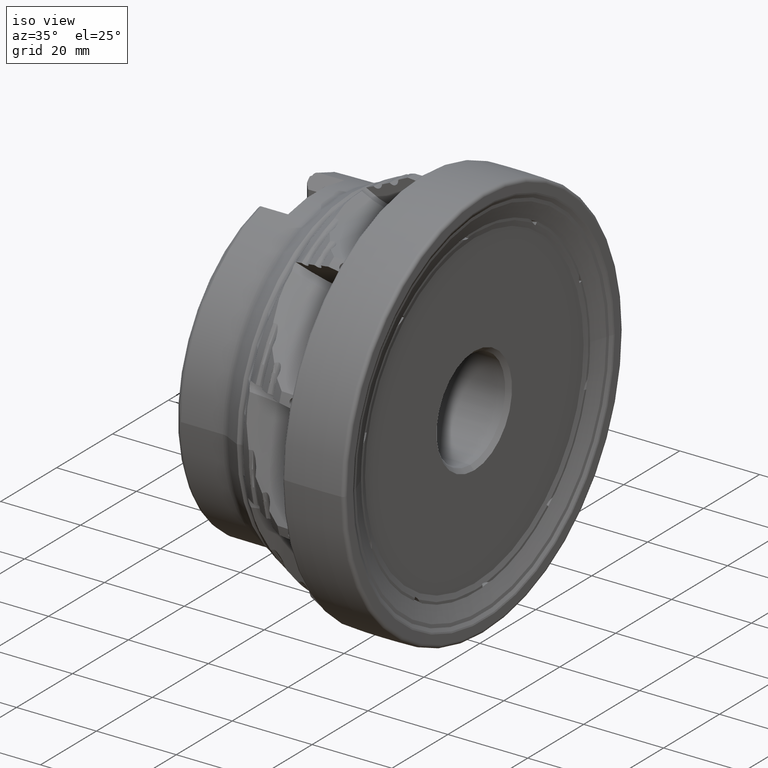
[diagram: clean part render]
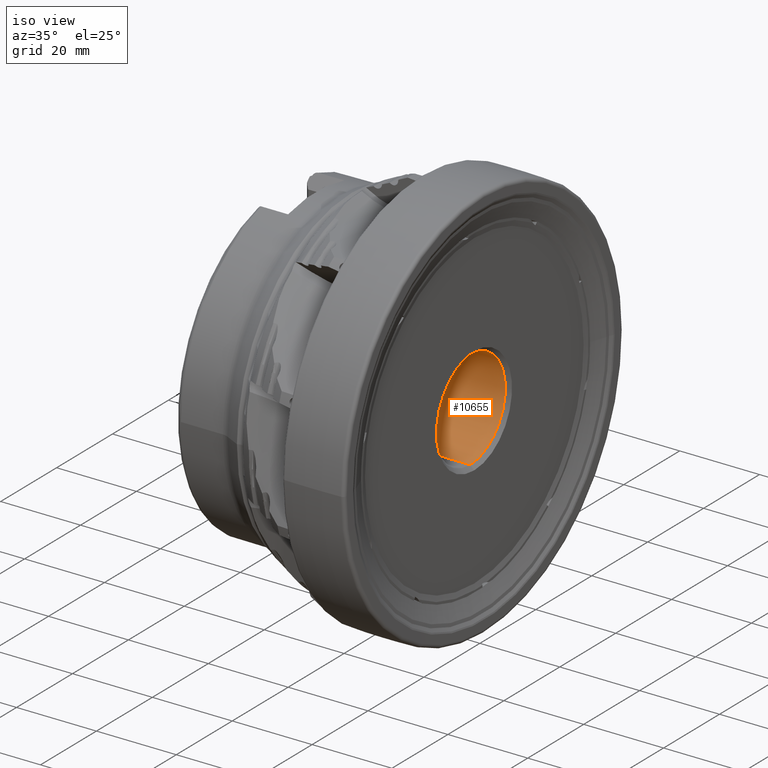
[diagram: same view with one face highlighted and labeled with its STEP entity id]
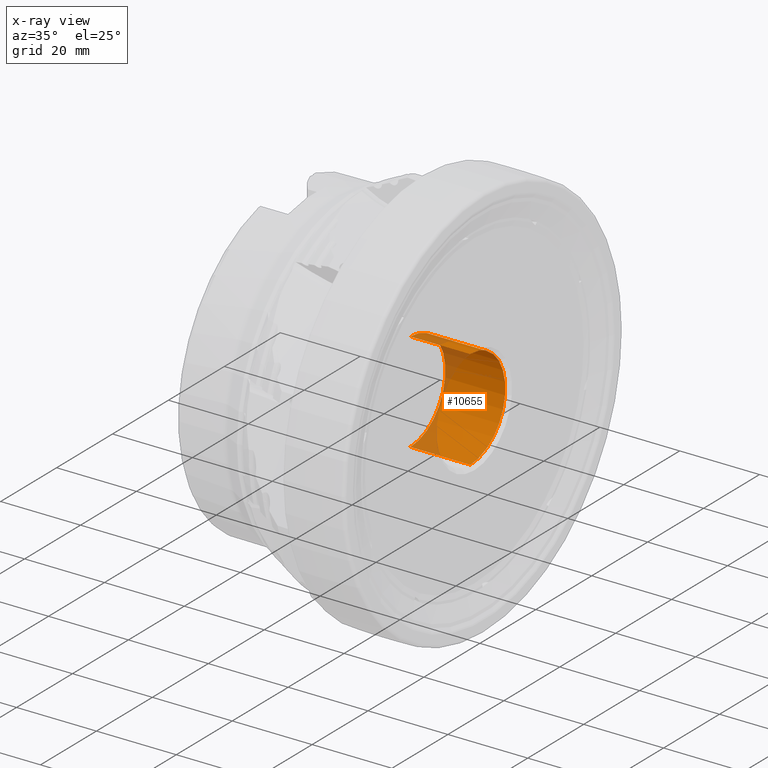
[diagram: x-ray of the same camera — body ghosted, the highlighted face saturated]
A machine part, iso view. The second image highlights one B-rep face of the part: STEP entity #10655.
The next image is the same camera in x-ray: the body ghosted, the highlighted face saturated — about 18% of this face is hidden behind the body in this view.
In plain terms, the highlighted cylindrical surface (partial cylindrical patch) has radius 12.5 mm, axis along (1, -0, -0).
Its self-contained STEP definition (entity closure, byte-faithful):
#76 = VECTOR ( 'NONE', #17584, 1000.000000000000000 ) ;
#98 = CIRCLE ( 'NONE', #7988, 12.49999999999999822 ) ;
#904 = ORIENTED_EDGE ( 'NONE', *, *, #19145, .F. ) ;
#1516 = EDGE_LOOP ( 'NONE', ( #11800, #904, #2616, #5738 ) ) ;
#1655 = CARTESIAN_POINT ( 'NONE',  ( -2.399999999999997691, 0.0000000000000000000, 0.0000000000000000000 ) ) ;
#2142 = DIRECTION ( 'NONE',  ( 1.000000000000000000, -0.0000000000000000000, -0.0000000000000000000 ) ) ;
#2616 = ORIENTED_EDGE ( 'NONE', *, *, #5001, .T. ) ;
#3022 = CARTESIAN_POINT ( 'NONE',  ( -2.399999999999997691, 0.0000000000000000000, -12.50000000000000000 ) ) ;
#3680 = LINE ( 'NONE', #5467, #13242 ) ;
#5001 = EDGE_CURVE ( 'NONE', #8752, #10030, #3680, .T. ) ;
#5286 = CYLINDRICAL_SURFACE ( 'NONE', #14646, 12.50000000000000000 ) ;
#5389 = CARTESIAN_POINT ( 'NONE',  ( 0.0000000000000000000, 0.0000000000000000000, 0.0000000000000000000 ) ) ;
#5467 = CARTESIAN_POINT ( 'NONE',  ( 0.0000000000000000000, 0.0000000000000000000, -12.50000000000000000 ) ) ;
#5738 = ORIENTED_EDGE ( 'NONE', *, *, #6403, .T. ) ;
#6403 = EDGE_CURVE ( 'Kante56', #10030, #19085, #13079, .T. ) ;
#7580 = DIRECTION ( 'NONE',  ( 0.0000000000000000000, 0.0000000000000000000, -1.000000000000000000 ) ) ;
#7634 = CARTESIAN_POINT ( 'NONE',  ( -17.39999999999999858, 1.530808498934191324E-15, 12.49999999999999822 ) ) ;
#7988 = AXIS2_PLACEMENT_3D ( 'NONE', #11524, #13167, #13383 ) ;
#8752 = VERTEX_POINT ( 'NONE', #13127 ) ;
#8768 = DIRECTION ( 'NONE',  ( 0.0000000000000000000, 0.0000000000000000000, -1.000000000000000000 ) ) ;
#10030 = VERTEX_POINT ( 'NONE', #3022 ) ;
#10596 = AXIS2_PLACEMENT_3D ( 'NONE', #1655, #10985, #7580 ) ;
#10655 = ADVANCED_FACE ( 'NONE', ( #17099 ), #5286, .F. ) ;
#10737 = CARTESIAN_POINT ( 'NONE',  ( -2.399999999999997691, 1.530808498934191521E-15, 12.50000000000000000 ) ) ;
#10985 = DIRECTION ( 'NONE',  ( 1.000000000000000000, -0.0000000000000000000, -0.0000000000000000000 ) ) ;
#11524 = CARTESIAN_POINT ( 'NONE',  ( -17.39999999999999858, 0.0000000000000000000, 0.0000000000000000000 ) ) ;
#11800 = ORIENTED_EDGE ( 'NONE', *, *, #19705, .F. ) ;
#12154 = DIRECTION ( 'NONE',  ( 1.000000000000000000, -0.0000000000000000000, -0.0000000000000000000 ) ) ;
#13079 = CIRCLE ( 'NONE', #10596, 12.50000000000000000 ) ;
#13127 = CARTESIAN_POINT ( 'NONE',  ( -17.39999999999999858, 0.0000000000000000000, -12.49999999999999822 ) ) ;
#13167 = DIRECTION ( 'NONE',  ( 1.000000000000000000, -0.0000000000000000000, -0.0000000000000000000 ) ) ;
#13242 = VECTOR ( 'NONE', #2142, 1000.000000000000000 ) ;
#13383 = DIRECTION ( 'NONE',  ( 0.0000000000000000000, 0.0000000000000000000, -1.000000000000000000 ) ) ;
#14646 = AXIS2_PLACEMENT_3D ( 'NONE', #5389, #12154, #8768 ) ;
#17099 = FACE_OUTER_BOUND ( 'NONE', #1516, .T. ) ;
#17584 = DIRECTION ( 'NONE',  ( 1.000000000000000000, -0.0000000000000000000, -0.0000000000000000000 ) ) ;
#19068 = LINE ( 'NONE', #21195, #76 ) ;
#19085 = VERTEX_POINT ( 'NONE', #10737 ) ;
#19145 = EDGE_CURVE ( 'NONE', #8752, #20075, #98, .T. ) ;
#19705 = EDGE_CURVE ( 'NONE', #20075, #19085, #19068, .T. ) ;
#20075 = VERTEX_POINT ( 'NONE', #7634 ) ;
#21195 = CARTESIAN_POINT ( 'NONE',  ( 0.0000000000000000000, 1.530808498934191521E-15, 12.50000000000000000 ) ) ;